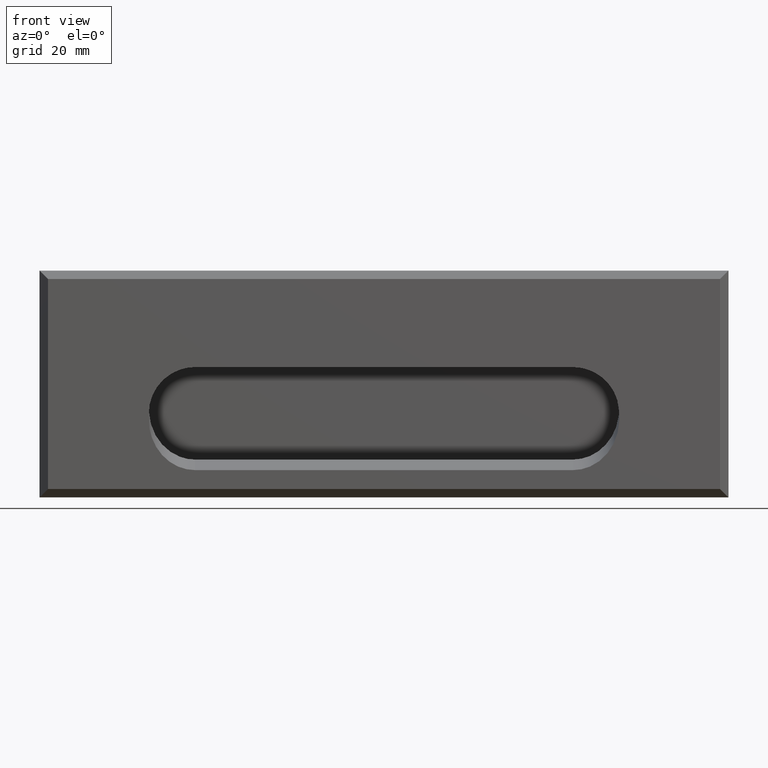
[diagram: clean part render]
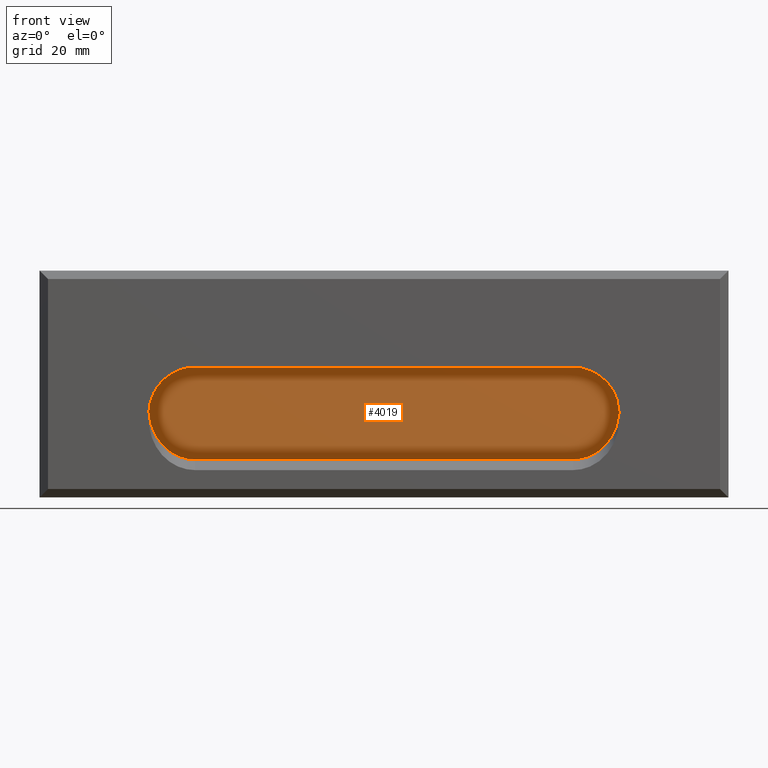
[diagram: same view with one face highlighted and labeled with its STEP entity id]
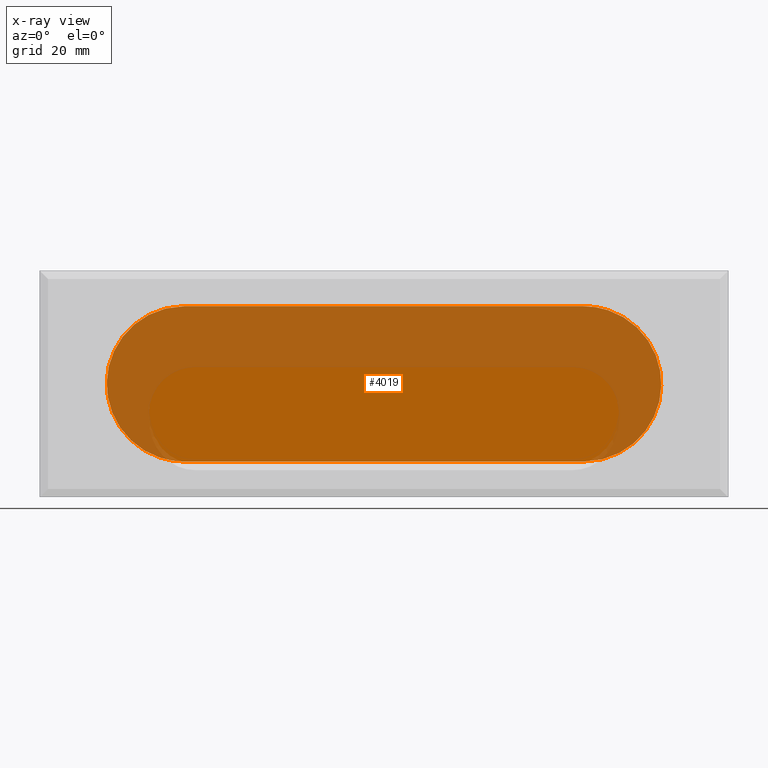
[diagram: x-ray of the same camera — body ghosted, the highlighted face saturated]
A machine part, front view. The second image highlights one B-rep face of the part: STEP entity #4019.
The next image is the same camera in x-ray: the body ghosted, the highlighted face saturated — about 47% of this face is hidden behind the body in this view.
In plain terms, the highlighted face is a freeform B-spline surface patch.
Its self-contained STEP definition (entity closure, byte-faithful):
#3964=CARTESIAN_POINT('',(-72.593399744158077,21.0,-20.348149928286819));
#3965=CARTESIAN_POINT('',(72.593403284673968,21.0,-20.348149928286819));
#3966=CARTESIAN_POINT('',(-72.593399744158077,21.0,20.348150920704150));
#3967=CARTESIAN_POINT('',(72.593403284673968,21.0,20.348150920704150));
#3968=B_SPLINE_SURFACE_WITH_KNOTS('',1,1,((#3964,#3966),(#3965,#3967)),.UNSPECIFIED.,.F.,.F.,.U.,(2,2),(2,2),(0.0,145.186803028832090),(0.0,40.696300848990973),.UNSPECIFIED.);
#3969=CARTESIAN_POINT('',(47.500000000000000,21.0,18.500000000000000));
#3970=VERTEX_POINT('',#3969);
#3971=CARTESIAN_POINT('',(-47.500000000000000,21.0,18.500000000000000));
#3972=VERTEX_POINT('',#3971);
#3973=CARTESIAN_POINT('',(47.500000000000000,21.0,18.500000000000000));
#3974=CARTESIAN_POINT('',(-47.500000000000000,21.0,18.500000000000000));
#3975=QUASI_UNIFORM_CURVE('',1,(#3973,#3974),.UNSPECIFIED.,.F.,.U.);
#3976=EDGE_CURVE('',#3970,#3972,#3975,.T.);
#3977=ORIENTED_EDGE('',*,*,#3976,.T.);
#3978=CARTESIAN_POINT('',(-47.500000000000000,21.0,-18.500000000000000));
#3979=VERTEX_POINT('',#3978);
#3980=CARTESIAN_POINT('',(-47.500000000000000,21.0,18.500000000000000));
#3981=CARTESIAN_POINT('',(-66.0,21.000000000000004,18.500000000000000));
#3982=CARTESIAN_POINT('',(-66.0,21.0,0.0));
#3983=CARTESIAN_POINT('',(-66.0,21.000000000000004,-18.500000000000000));
#3984=CARTESIAN_POINT('',(-47.500000000000000,21.0,-18.500000000000000));
#3992=(BOUNDED_CURVE()B_SPLINE_CURVE(2,(#3980,#3981,#3982,#3983,#3984),.UNSPECIFIED.,.F.,.U.)B_SPLINE_CURVE_WITH_KNOTS((3,2,3),(0.0,0.500000000000000,1.0),.UNSPECIFIED.)CURVE()GEOMETRIC_REPRESENTATION_ITEM()RATIONAL_B_SPLINE_CURVE((1.0,0.707106781186548,1.0,0.707106781186548,1.0))REPRESENTATION_ITEM(''));
#3993=EDGE_CURVE('',#3972,#3979,#3992,.T.);
#3994=ORIENTED_EDGE('',*,*,#3993,.T.);
#3995=CARTESIAN_POINT('',(47.500000000000000,21.0,-18.500000000000000));
#3996=VERTEX_POINT('',#3995);
#3997=CARTESIAN_POINT('',(-47.500000000000000,21.0,-18.500000000000000));
#3998=CARTESIAN_POINT('',(47.500000000000000,21.0,-18.500000000000000));
#3999=QUASI_UNIFORM_CURVE('',1,(#3997,#3998),.UNSPECIFIED.,.F.,.U.);
#4000=EDGE_CURVE('',#3979,#3996,#3999,.T.);
#4001=ORIENTED_EDGE('',*,*,#4000,.T.);
#4002=CARTESIAN_POINT('',(47.500000000000000,21.0,-18.500000000000000));
#4003=CARTESIAN_POINT('',(66.0,21.000000000000004,-18.500000000000000));
#4004=CARTESIAN_POINT('',(66.0,21.0,0.0));
#4005=CARTESIAN_POINT('',(66.0,21.000000000000004,18.500000000000000));
#4006=CARTESIAN_POINT('',(47.500000000000000,21.0,18.500000000000000));
#4014=(BOUNDED_CURVE()B_SPLINE_CURVE(2,(#4002,#4003,#4004,#4005,#4006),.UNSPECIFIED.,.F.,.U.)B_SPLINE_CURVE_WITH_KNOTS((3,2,3),(0.0,0.500000000000000,1.0),.UNSPECIFIED.)CURVE()GEOMETRIC_REPRESENTATION_ITEM()RATIONAL_B_SPLINE_CURVE((1.0,0.707106781186548,1.0,0.707106781186548,1.0))REPRESENTATION_ITEM(''));
#4015=EDGE_CURVE('',#3996,#3970,#4014,.T.);
#4016=ORIENTED_EDGE('',*,*,#4015,.T.);
#4017=EDGE_LOOP('',(#3977,#3994,#4001,#4016));
#4018=FACE_OUTER_BOUND('',#4017,.T.);
#4019=ADVANCED_FACE('',(#4018),#3968,.T.);